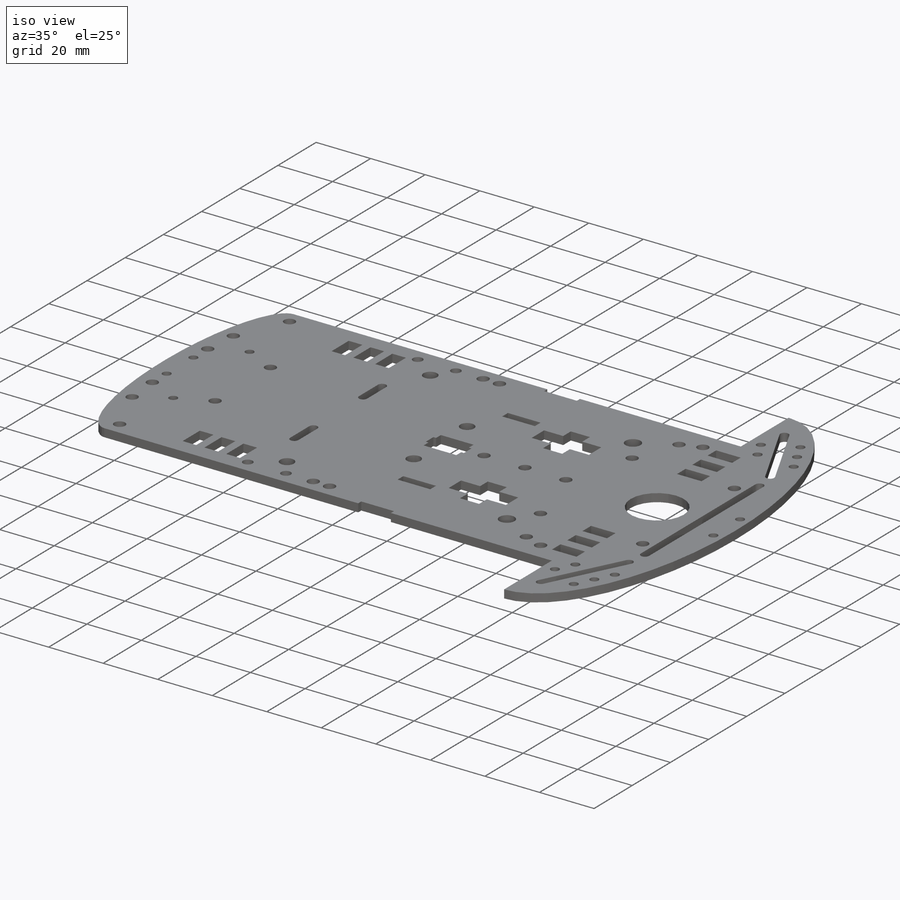
[diagram: iso view]
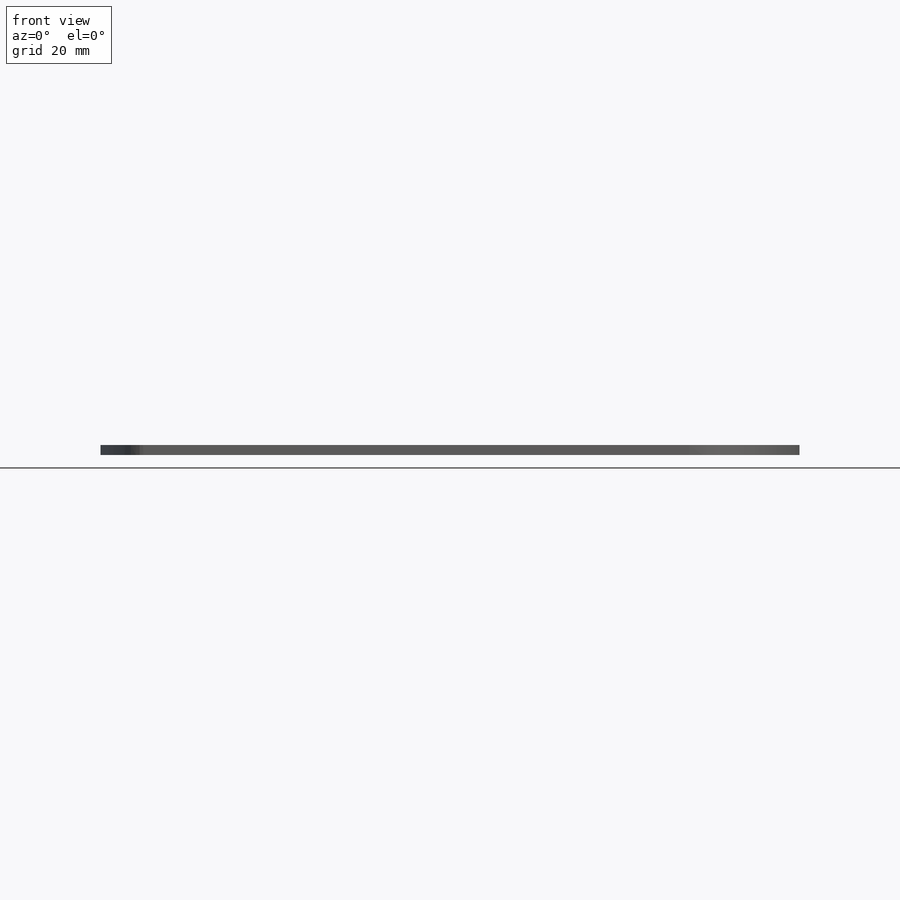
[diagram: front view]
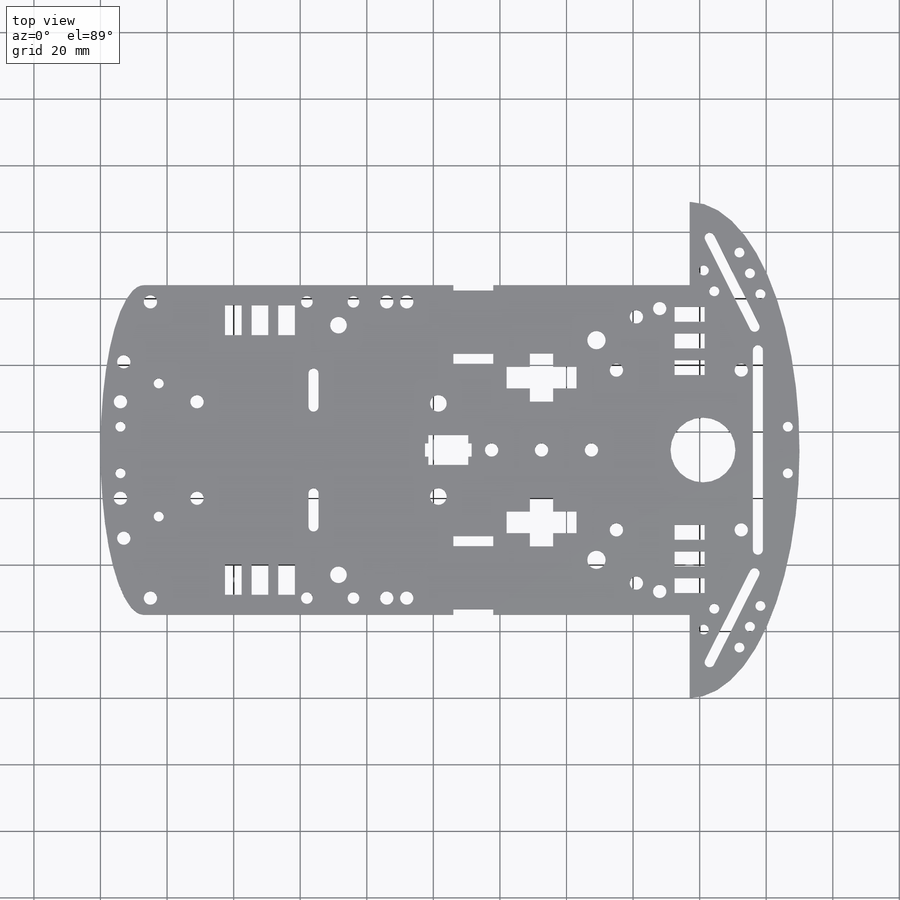
[diagram: top view]
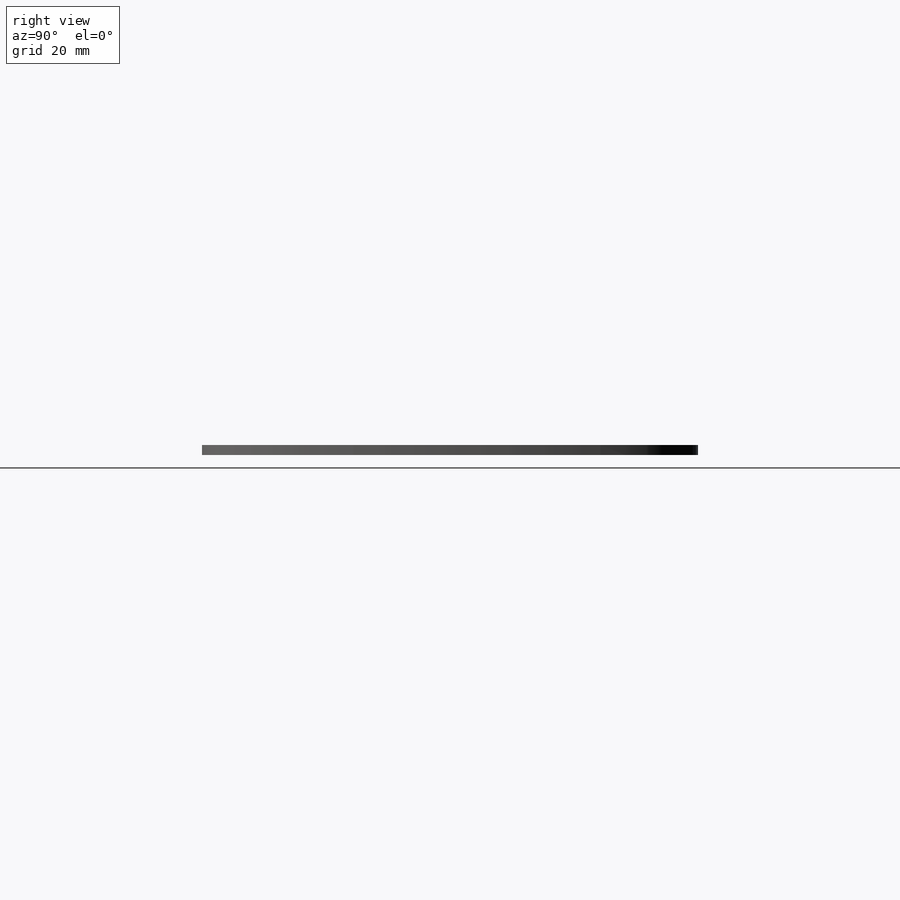
[diagram: right view]
SOLIDWORKS PART (.sldprt)
format: sldprt  version: not decoded by parser v0  size: 726,016 bytes
history: native  units: mm
features: sketch x11, cut_extrude x10, material x1, extrude x1 (+11 scaffold rows collapsed)
feature tree (34):
  scaffold x11  (default folders/planes/origin — collapsed)
  material  "Material <not specified>"
  sketch  "Sketch1"  dims[D1=210.0mm D2=149.0mm]
  extrude  "Boss-Extrude1"  Depth=3mm
  sketch  "Sketch2"  dims[D1=177.0mm D2=25.0mm D3=25.0mm]
  cut_extrude  "Cut-Extrude1"  Depth=3mm
  sketch  "Sketch3"  dims[c1.D16=5.5mm c1.D19=~2.919764mm c1.D21=4.0mm c1.D25=4.0mm c1.D27=4.0mm c1.D1=34.0mm c1.D2=6.5mm c1.D3=24.5mm c1.D4=21.0mm c1.D5=7.0mm c1.D6=7.0mm c1.D7=4.0mm c1.D8=4.0mm c1.D9=59.0mm c1.D10=12.0mm c1.D11=1.6mm c1.D12=3.0mm c1.D13=19.0mm c1.D14=12.0mm c1.D15=59.0mm c1.D17=28.0mm c1.D18=16.5mm c2.D19=9.0mm c2.D20=7.0mm c2.D22=16.0mm c2.D23=9.5mm c2.D24=25.5mm c2.D26=22.0mm c2.D27=16.0mm c2.D28=4.5mm c2.D29=9.0mm c2.D30=4.5mm c2.D31=6.5mm c2.D32=4.5mm c2.D33=3.5mm c2.D34=9.0mm c2.D35=4.5mm c2.D36=3.5mm c2.D37=177.0mm]
  cut_extrude  "Cut-Extrude2"  Depth=3mm
  sketch  "Sketch4"  dims[c1.D1=4.0mm c1.D2=4.0mm c1.D6=4.0mm c1.D8=3.5mm c1.D12=3.5mm c1.D13=5.0mm c1.D17=4.0mm c1.D3=6.0mm c1.D4=14.0mm c1.D5=5.0mm c2.D6=5.0mm c2.D7=30.0mm c2.D9=5.0mm c2.D10=14.0mm c2.D11=5.0mm c2.D14=34.5mm c2.D15=12.0mm c2.D16=47.0mm c2.D18=5.0mm]
  cut_extrude  "Cut-Extrude3"  Depth=3mm
  sketch  "Sketch5"  dims[D1=5.0mm D2=9.0mm D3=47.6mm D4=6.0mm D5=5.0mm D6=5.0mm D7=3.0mm D8=3.0mm D9=9.0mm D10=9.0mm]
  cut_extrude  "Cut-Extrude4"  Depth=3mm
  sketch  "Sketch6"  dims[c1.D4=4.0mm c1.D5=4.0mm c1.D6=4.0mm c1.D7=4.0mm c1.D8=3.0mm c1.D9=3.0mm c1.D12=~2.178978mm c1.D14=3.0mm c1.D1=29.0mm c1.D2=23.0mm c1.D3=6.0mm c1.D10=14.0mm c1.D11=~17.366168mm c2.D12=~8.683084mm c2.D11=7.0mm c3.D12=12.0mm c3.D13=1.0mm c3.D14=20.0mm]
  sketch  "Sketch7"  dims[c1.D1=19.5mm c1.D3=~1.965184mm c1.D16=5.0mm c1.D2=29.0mm c2.D3=15.0mm c2.D4=15.0mm c2.D5=3.5mm c2.D6=9.0mm c2.D7=4.5mm c2.D8=12.0mm c2.D9=14.0mm c2.D10=4.0mm c2.D11=2.0mm c2.D12=1.0mm c2.D13=6.0mm c2.D14=14.0mm c2.D15=4.5mm]
  cut_extrude  "Cut-Extrude5"  Depth=3mm
  cut_extrude  "Cut-Extrude6"  Depth=3mm
  sketch  "Sketch8"  dims[D1=1.5mm D2=10.0mm D3=13.0mm D4=26.5mm D5=35.0mm D6=34.5mm]
  cut_extrude  "Cut-Extrude7"  Depth=3mm
  sketch  "Sketch9"  dims[c1.D4=~0.933848mm c1.D3=1.5mm c1.D9=1.5mm c1.D10=3.0mm c1.D14=3.0mm c1.D18=3.0mm c1.D16=3.0mm c1.D17=3.0mm c1.D19=~4.046036mm c1.D20=3.0mm c1.D23=4.0mm c1.D25=3.0mm c1.D1=60.0mm c1.D2=30.0mm c2.D3=~1.867695mm c2.D4=15.0mm c2.D5=30.0mm c2.D6=1.0mm c2.D7=7.0mm c2.D8=6.0mm c2.D11=6.0mm c2.D12=7.0mm c2.D13=6.0mm c2.D15=6.0mm c2.D16=~6.019701mm c2.D17=~6.740771mm c3.D15=7.0mm c3.D18=6.0mm c3.D19=6.0mm c3.D21=24.0mm c3.D22=5.0mm c3.D24=7.0mm c3.D26=9.0mm]
  cut_extrude  "Cut-Extrude8"  Depth=3mm
  sketch  "Sketch11"
  cut_extrude  "Cut-Extrude9"  Depth=3mm
  sketch  "Sketch12"  dims[D1=13.0mm]
  cut_extrude  "Cut-Extrude10"  Depth=3mm
decode coverage: 21 of 22 modeling features carry decoded parameters
note: ~ marks probable driven/reference dimensions
note: suppression state not decoded; provenance and decode notes live in map.json
